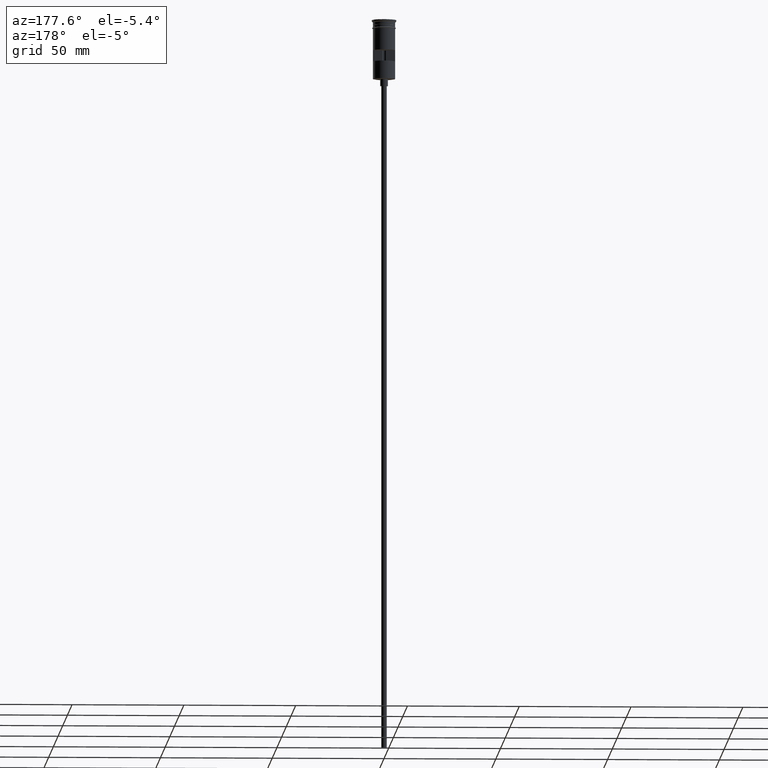
[diagram: clean part render]
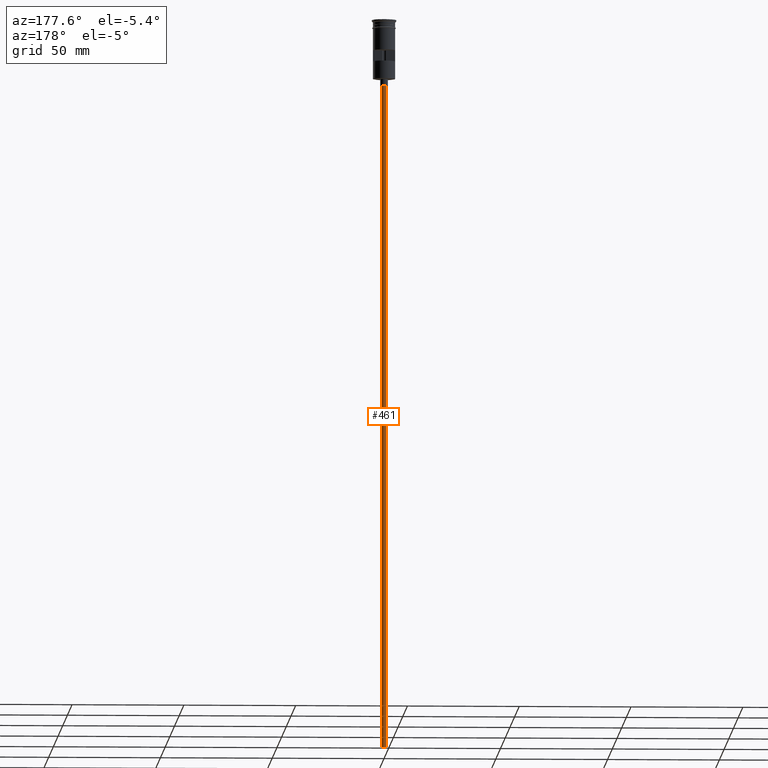
[diagram: same view with one face highlighted and labeled with its STEP entity id]
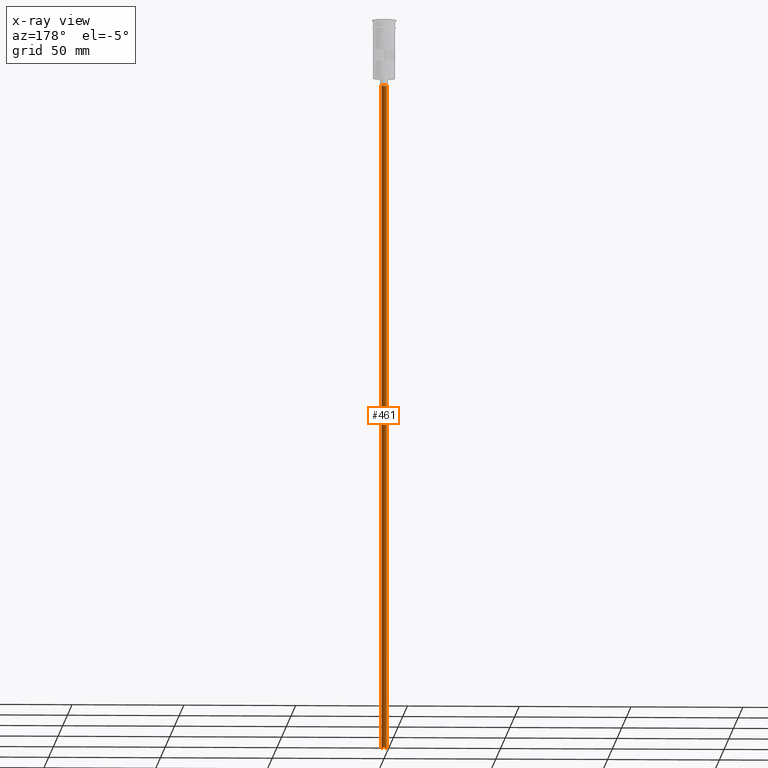
[diagram: x-ray of the same camera — body ghosted, the highlighted face saturated]
A machine part, auxiliary view. The second image highlights one B-rep face of the part: STEP entity #461.
The next image is the same camera in x-ray: the body ghosted, the highlighted face saturated — about 0% of this face is hidden behind the body in this view.
In plain terms, the highlighted cylindrical surface (edge-blend (fillet) strip) has radius 1.25 mm, axis along (-0, -0, 1).
Its self-contained STEP definition (entity closure, byte-faithful):
#28 = CARTESIAN_POINT ( 'NONE',  ( 1.250000000000000000, 0.000000000000000000, -29.50000000000000000 ) ) ;
#39 = DIRECTION ( 'NONE',  ( -0.000000000000000000, -0.000000000000000000, 1.000000000000000000 ) ) ;
#97 = DIRECTION ( 'NONE',  ( -0.000000000000000000, -0.000000000000000000, 1.000000000000000000 ) ) ;
#112 = ORIENTED_EDGE ( 'NONE', *, *, #1357, .F. ) ;
#118 = EDGE_LOOP ( 'NONE', ( #112, #1109, #388, #719 ) ) ;
#191 = CARTESIAN_POINT ( 'NONE',  ( -1.250000000000000000, 1.530808498934191571E-16, -326.5000000000000000 ) ) ;
#219 = CYLINDRICAL_SURFACE ( 'NONE', #623, 1.250000000000000000 ) ;
#334 = DIRECTION ( 'NONE',  ( -1.000000000000000000, 0.000000000000000000, 0.000000000000000000 ) ) ;
#346 = VERTEX_POINT ( 'NONE', #1336 ) ;
#388 = ORIENTED_EDGE ( 'NONE', *, *, #1142, .T. ) ;
#434 = EDGE_CURVE ( 'NONE', #596, #920, #712, .T. ) ;
#461 = ADVANCED_FACE ( 'NONE', ( #960 ), #219, .T. ) ;
#492 = DIRECTION ( 'NONE',  ( -0.000000000000000000, -0.000000000000000000, 1.000000000000000000 ) ) ;
#548 = CARTESIAN_POINT ( 'NONE',  ( 0.000000000000000000, 0.000000000000000000, -326.5000000000000000 ) ) ;
#596 = VERTEX_POINT ( 'NONE', #1260 ) ;
#598 = VECTOR ( 'NONE', #39, 1000.000000000000000 ) ;
#608 = CIRCLE ( 'NONE', #1066, 1.250000000000000000 ) ;
#617 = CARTESIAN_POINT ( 'NONE',  ( 1.250000000000000000, 0.000000000000000000, -326.5000000000000000 ) ) ;
#623 = AXIS2_PLACEMENT_3D ( 'NONE', #1579, #492, #982 ) ;
#684 = CARTESIAN_POINT ( 'NONE',  ( -1.250000000000000000, 1.530808498934191571E-16, -29.50000000000000000 ) ) ;
#701 = DIRECTION ( 'NONE',  ( 0.000000000000000000, 0.000000000000000000, -1.000000000000000000 ) ) ;
#712 = LINE ( 'NONE', #617, #1187 ) ;
#719 = ORIENTED_EDGE ( 'NONE', *, *, #434, .F. ) ;
#744 = EDGE_CURVE ( 'NONE', #346, #1280, #921, .T. ) ;
#807 = CIRCLE ( 'NONE', #1315, 1.250000000000000000 ) ;
#920 = VERTEX_POINT ( 'NONE', #28 ) ;
#921 = LINE ( 'NONE', #191, #598 ) ;
#960 = FACE_OUTER_BOUND ( 'NONE', #118, .T. ) ;
#982 = DIRECTION ( 'NONE',  ( 1.000000000000000000, 0.000000000000000000, 0.000000000000000000 ) ) ;
#1066 = AXIS2_PLACEMENT_3D ( 'NONE', #548, #701, #334 ) ;
#1109 = ORIENTED_EDGE ( 'NONE', *, *, #744, .T. ) ;
#1142 = EDGE_CURVE ( 'NONE', #1280, #920, #807, .T. ) ;
#1187 = VECTOR ( 'NONE', #97, 1000.000000000000000 ) ;
#1260 = CARTESIAN_POINT ( 'NONE',  ( 1.250000000000000000, 0.000000000000000000, -326.5000000000000000 ) ) ;
#1280 = VERTEX_POINT ( 'NONE', #684 ) ;
#1315 = AXIS2_PLACEMENT_3D ( 'NONE', #1452, #1423, #1327 ) ;
#1327 = DIRECTION ( 'NONE',  ( -1.000000000000000000, 0.000000000000000000, 0.000000000000000000 ) ) ;
#1336 = CARTESIAN_POINT ( 'NONE',  ( -1.250000000000000000, 1.530808498934191571E-16, -326.5000000000000000 ) ) ;
#1357 = EDGE_CURVE ( 'NONE', #346, #596, #608, .T. ) ;
#1423 = DIRECTION ( 'NONE',  ( 0.000000000000000000, 0.000000000000000000, -1.000000000000000000 ) ) ;
#1452 = CARTESIAN_POINT ( 'NONE',  ( 0.000000000000000000, 0.000000000000000000, -29.50000000000000000 ) ) ;
#1579 = CARTESIAN_POINT ( 'NONE',  ( 0.000000000000000000, 0.000000000000000000, -326.5000000000000000 ) ) ;